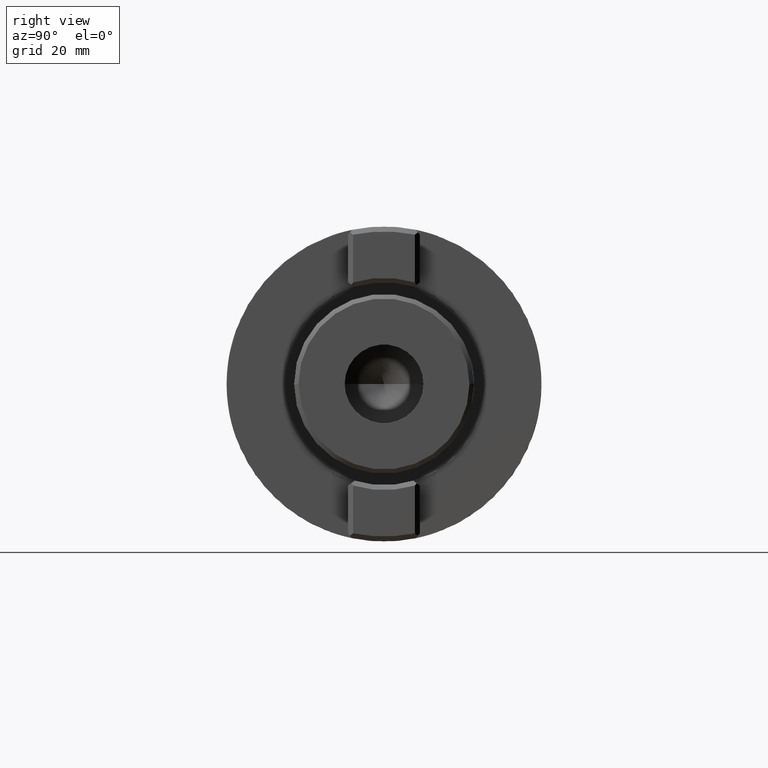
[diagram: clean part render]
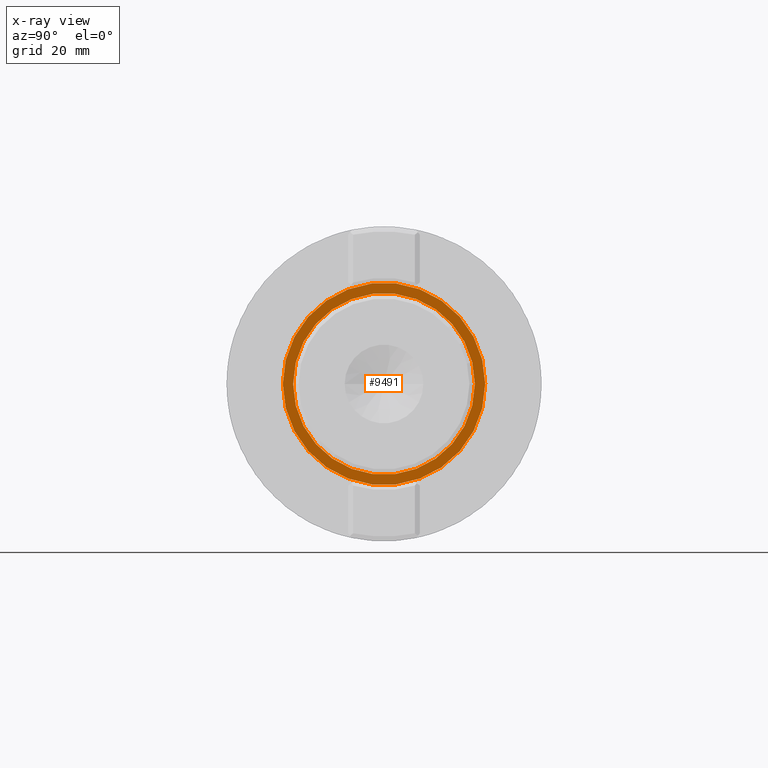
[diagram: x-ray — body ghosted, one internal face saturated and labeled with its STEP entity id]
A machine part, right view, then the same camera in x-ray: the body is ghosted and one INTERNAL B-rep face — a face not visible from any outside direction — is saturated and labeled: STEP entity #9491.
In plain terms, the highlighted planar face has unit normal (-1, 0, 0).
Its self-contained STEP definition (entity closure, byte-faithful):
#8117=CARTESIAN_POINT('',(0.E0,1.E0,0.E0));
#8118=DIRECTION('',(0.E0,-1.E0,0.E0));
#8119=DIRECTION('',(1.E0,0.E0,0.E0));
#8120=AXIS2_PLACEMENT_3D('',#8117,#8118,#8119);
#8131=CARTESIAN_POINT('',(0.E0,1.E0,0.E0));
#8132=DIRECTION('',(0.E0,-1.E0,0.E0));
#8133=DIRECTION('',(1.E0,0.E0,0.E0));
#8134=AXIS2_PLACEMENT_3D('',#8131,#8132,#8133);
#8136=CARTESIAN_POINT('',(0.E0,1.E0,0.E0));
#8137=DIRECTION('',(0.E0,-1.E0,0.E0));
#8138=DIRECTION('',(-1.E0,0.E0,0.E0));
#8139=AXIS2_PLACEMENT_3D('',#8136,#8137,#8138);
#8141=CARTESIAN_POINT('',(0.E0,1.E0,0.E0));
#8142=DIRECTION('',(0.E0,-1.E0,0.E0));
#8143=DIRECTION('',(-1.E0,0.E0,0.E0));
#8144=AXIS2_PLACEMENT_3D('',#8141,#8142,#8143);
#8711=CARTESIAN_POINT('',(2.25E1,1.E0,0.E0));
#8712=CARTESIAN_POINT('',(-2.25E1,1.E0,0.E0));
#8713=VERTEX_POINT('',#8711);
#8714=VERTEX_POINT('',#8712);
#8715=CARTESIAN_POINT('',(2.0195E1,1.E0,0.E0));
#8716=CARTESIAN_POINT('',(-2.0195E1,1.E0,0.E0));
#8717=VERTEX_POINT('',#8715);
#8718=VERTEX_POINT('',#8716);
#9477=CARTESIAN_POINT('',(0.E0,1.E0,0.E0));
#9478=DIRECTION('',(0.E0,-1.E0,0.E0));
#9479=DIRECTION('',(1.E0,0.E0,0.E0));
#9480=AXIS2_PLACEMENT_3D('',#9477,#9478,#9479);
#9481=PLANE('',#9480);
#9482=ORIENTED_EDGE('',*,*,#9022,.F.);
#9483=ORIENTED_EDGE('',*,*,#8965,.F.);
#9484=EDGE_LOOP('',(#9482,#9483));
#9485=FACE_OUTER_BOUND('',#9484,.F.);
#9486=ORIENTED_EDGE('',*,*,#9467,.T.);
#9488=ORIENTED_EDGE('',*,*,#9487,.T.);
#9489=EDGE_LOOP('',(#9486,#9488));
#9490=FACE_BOUND('',#9489,.F.);
#9491=ADVANCED_FACE('',(#9485,#9490),#9481,.T.);
#8121=CIRCLE('',#8120,2.0195E1);
#8135=CIRCLE('',#8134,2.25E1);
#8140=CIRCLE('',#8139,2.25E1);
#8145=CIRCLE('',#8144,2.0195E1);
#8965=EDGE_CURVE('',#8714,#8713,#8140,.T.);
#9022=EDGE_CURVE('',#8713,#8714,#8135,.T.);
#9467=EDGE_CURVE('',#8717,#8718,#8121,.T.);
#9487=EDGE_CURVE('',#8718,#8717,#8145,.T.);